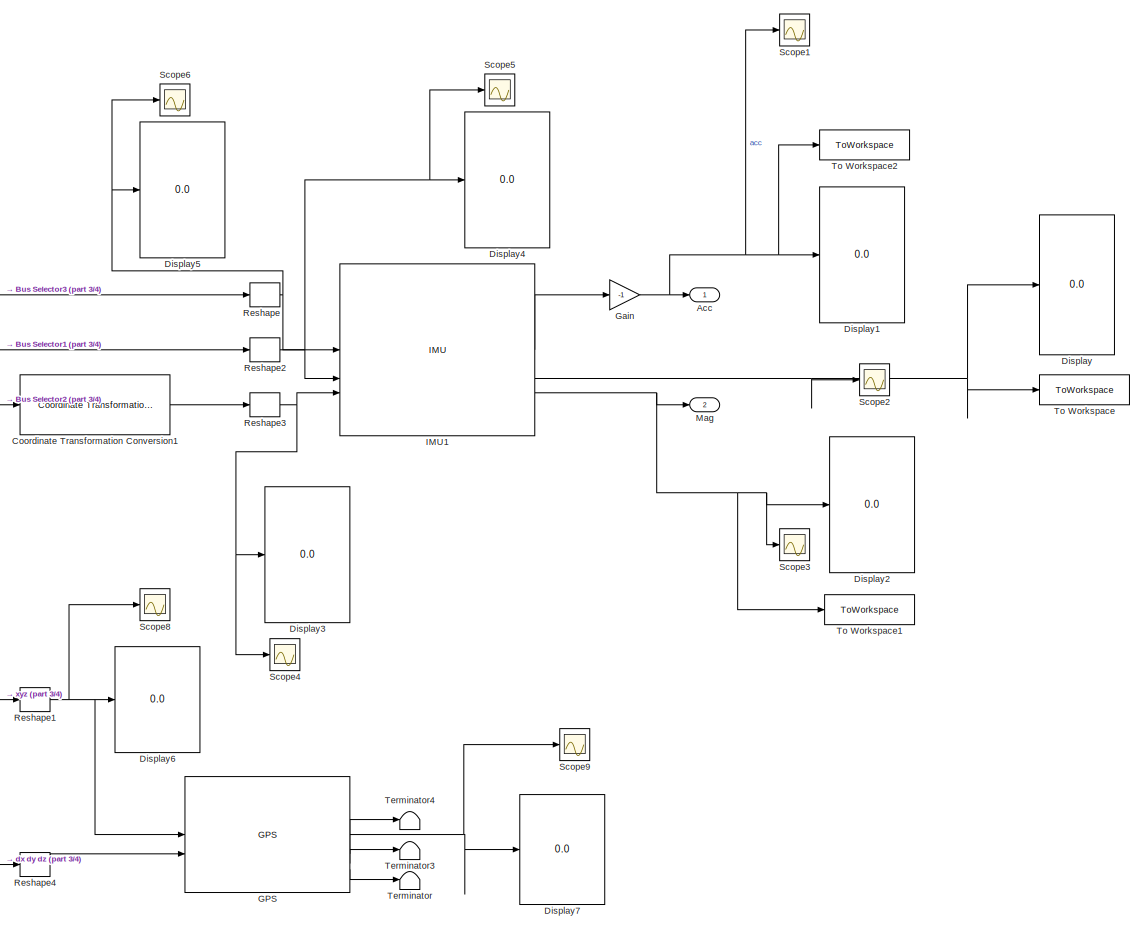
[diagram: root canvas - part 1/4, right side, full height]
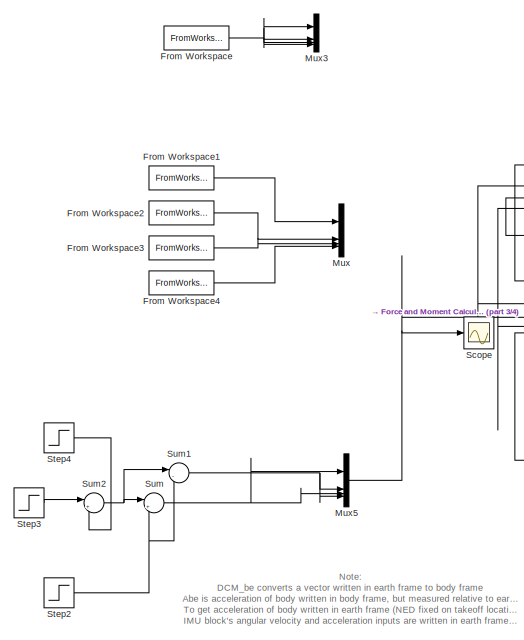
[diagram: root canvas - part 2/4, middle left region]
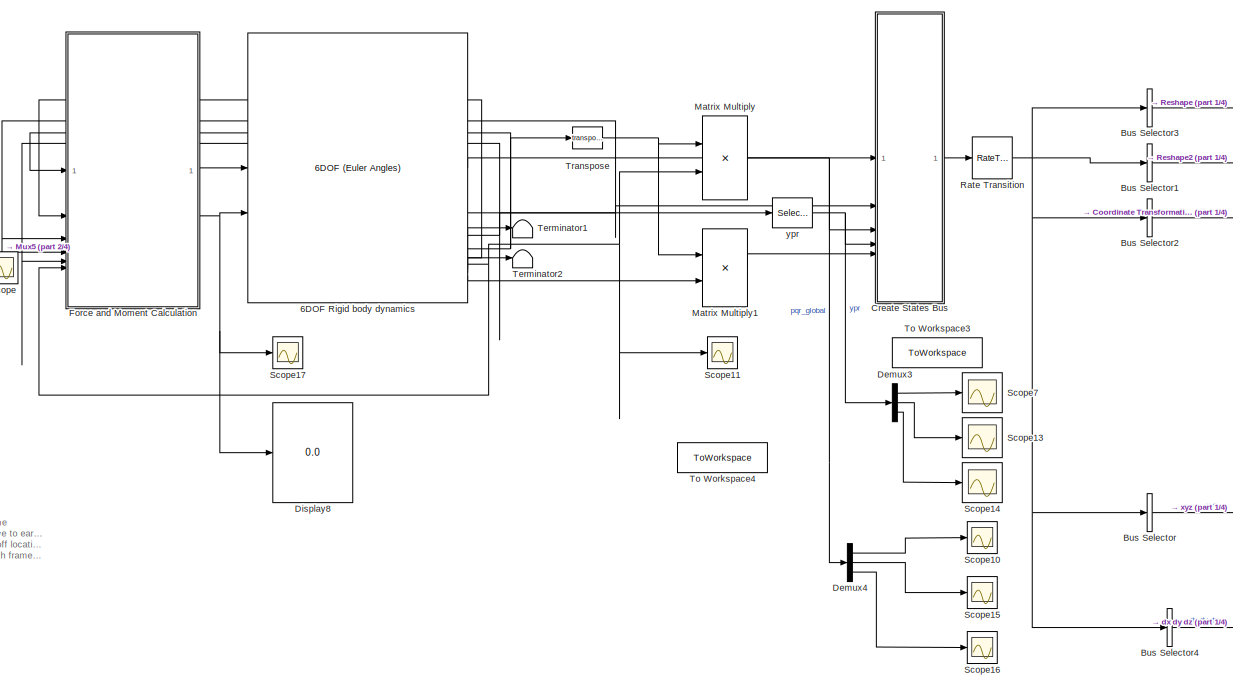
[diagram: root canvas - part 3/4, central region]
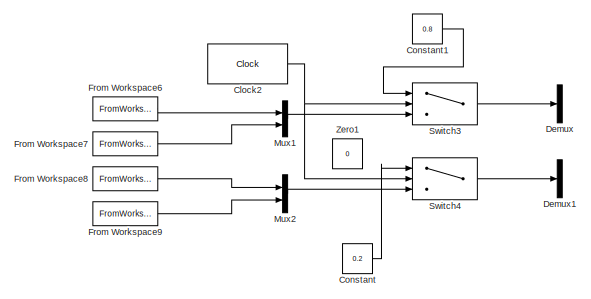
[diagram: root canvas - part 4/4, middle left region]
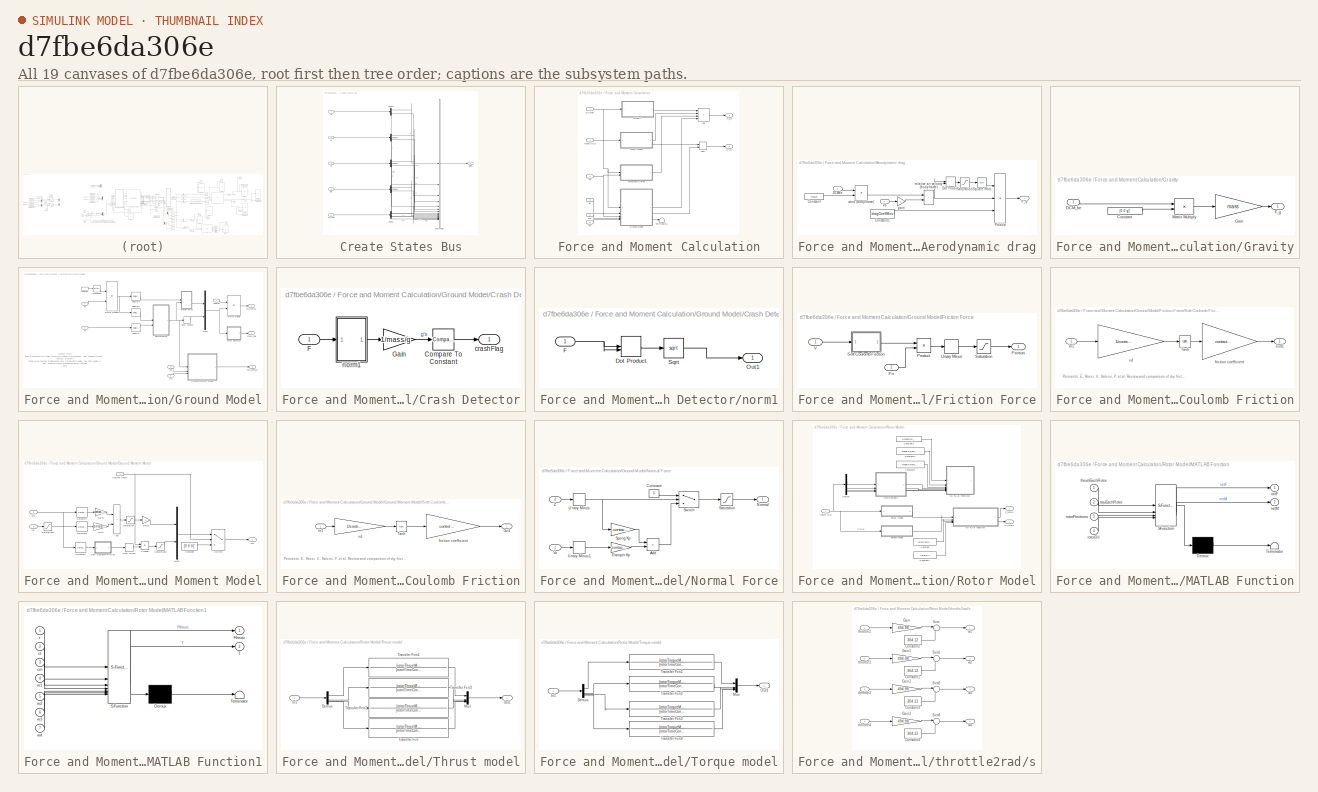
[diagram: thumbnail index - all 19 canvases of the model, root first then tree order]
MODEL slx_d7fbe6da306e
KIND model
CONFIG AbsTol = auto
CONFIG EnableMultiTasking = off
CONFIG FixedStep = auto
CONFIG MaxStep = auto
CONFIG MinStep = auto
CONFIG RelTol = 1e-3
CONFIG SampleTimeConstraint = Unconstrained
CONFIG SolverName = VariableStepAuto
CONFIG StartTime = 0.0
CONFIG StopTime = 40
BLOCK [Reference] 6DOF Rigid body dynamics   REF=shared6dof/6DOF (Euler Angles)
  SourceBlock = shared6dof/6DOF (Euler Angles)
  SourceType = 6DOF EoM (Body Axis)
BLOCK [Outport] Acc
BLOCK [BusSelector] Bus Selector
  OutputAsBus = on
  OutputSignals = X,Y,Z
BLOCK [BusSelector] Bus Selector1
  Commented = on
  OutputAsBus = on
  OutputSignals = p,q,r
BLOCK [BusSelector] Bus Selector2
  Commented = on
  OutputAsBus = on
  OutputSignals = yaw,pitch,roll
BLOCK [BusSelector] Bus Selector3
  Commented = on
  OutputAsBus = on
  OutputSignals = ddx,ddy,ddz
BLOCK [BusSelector] Bus Selector4
  Commented = on
  OutputAsBus = on
  OutputSignals = dx,dy,dz
BLOCK [Clock] Clock2
  Commented = on
  DisplayTime = on
BLOCK [Constant] Constant
  Commented = on
  Value = 0.2
BLOCK [Constant] Constant1
  Commented = on
  Value = 0.8
BLOCK [Reference] Coordinate Transformation Conversion1  REF=robotcorelib/Coordinate Transformation Conversion
  Commented = on
  SourceBlock = robotcorelib/Coordinate Transformation Conversion
  SourceType = robotics.slcore.internal.block.CoordinateTransformationConversion
BLOCK [SubSystem] Create States Bus
BLOCK [BusCreator] Create States Bus/Bus Creator
  DisplayOption = bar
  InheritFromInputs = on
  Inputs = X,Y,Z,yaw,pitch,roll,dx,dy,dz,p,q,r,ddx,ddy,ddz
BLOCK [Demux] Create States Bus/Demux
  Outputs = 3
BLOCK [Demux] Create States Bus/Demux1
  Outputs = 3
BLOCK [Demux] Create States Bus/Demux2
  Outputs = 3
BLOCK [Demux] Create States Bus/Demux3
  Outputs = 3
BLOCK [Demux] Create States Bus/Demux4
  Outputs = 3
BLOCK [Outport] Create States Bus/States
BLOCK [Inport] Create States Bus/Ve
BLOCK [Inport] Create States Bus/Xe
  Port = 2
BLOCK [Inport] Create States Bus/acc_lnav
  Port = 5
BLOCK [Inport] Create States Bus/pqr
  Port = 3
BLOCK [Inport] Create States Bus/ypr
  Port = 4
BLOCK [Demux] Demux
  Commented = on
  Outputs = 2
BLOCK [Demux] Demux1
  Commented = on
  Outputs = 2
BLOCK [Demux] Demux3
  Outputs = 3
BLOCK [Demux] Demux4
  Outputs = 3
BLOCK [Display] Display
  Commented = on
  Decimation = 1
BLOCK [Display] Display1
  Commented = on
  Decimation = 1
BLOCK [Display] Display2
  Commented = on
  Decimation = 1
BLOCK [Display] Display3
  Commented = on
  Decimation = 1
BLOCK [Display] Display4
  Commented = on
  Decimation = 1
BLOCK [Display] Display5
  Commented = on
  Decimation = 1
BLOCK [Display] Display6
  Decimation = 1
BLOCK [Display] Display7
  Commented = on
  Decimation = 1
BLOCK [Display] Display8
  Decimation = 1
BLOCK [SubSystem] Force and Moment Calculation
BLOCK [Sum] Force and Moment Calculation/Add
  IconShape = rectangular
  Inputs = ++++
BLOCK [Sum] Force and Moment Calculation/Add1
  IconShape = rectangular
BLOCK [SubSystem] Force and Moment Calculation/Aerodynamic drag
BLOCK [Constant] Force and Moment Calculation/Aerodynamic drag/Constant
  Value = windVel
BLOCK [Constant] Force and Moment Calculation/Aerodynamic drag/Constant1
  Value = dragCoeffMov
BLOCK [Inport] Force and Moment Calculation/Aerodynamic drag/DCMbe
BLOCK [DotProduct] Force and Moment Calculation/Aerodynamic drag/Dot Product
  OutDataTypeStr = Inherit: Inherit via internal rule
BLOCK [Outport] Force and Moment Calculation/Aerodynamic drag/F_d
BLOCK [Product] Force and Moment Calculation/Aerodynamic drag/Product
  Inputs = 3
BLOCK [Saturate] Force and Moment Calculation/Aerodynamic drag/Saturation
  LowerLimit = 0.0001
  UpperLimit = inf
BLOCK [Sqrt] Force and Moment Calculation/Aerodynamic drag/Square Root
BLOCK [Inport] Force and Moment Calculation/Aerodynamic drag/Vb
  Port = 2
BLOCK [Gain] Force and Moment Calculation/Aerodynamic drag/gain
  Gain = -1
BLOCK [Sum] Force and Moment Calculation/Aerodynamic drag/relative air velocity (body frame)
  IconShape = rectangular
BLOCK [Product] Force and Moment Calculation/Aerodynamic drag/wind (body frame)
  Multiplication = Matrix(*)
BLOCK [Inport] Force and Moment Calculation/DCMbe
BLOCK [Outport] Force and Moment Calculation/F_xyz
BLOCK [SubSystem] Force and Moment Calculation/Gravity
BLOCK [Constant] Force and Moment Calculation/Gravity/Constant
  Value = [0 0 g]'
BLOCK [Inport] Force and Moment Calculation/Gravity/DCM_be
BLOCK [Outport] Force and Moment Calculation/Gravity/F_g
BLOCK [Gain] Force and Moment Calculation/Gravity/Gain
  Gain = mass
BLOCK [Product] Force and Moment Calculation/Gravity/Matrix Multiply
  Multiplication = Matrix(*)
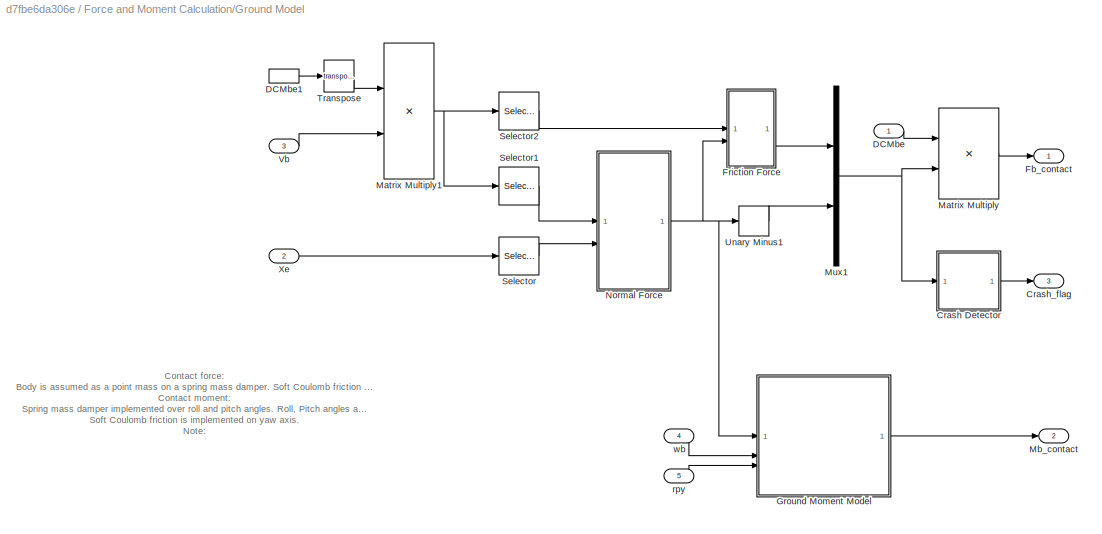
BLOCK [SubSystem] Force and Moment Calculation/Ground Model
BLOCK [SubSystem] Force and Moment Calculation/Ground Model/Crash Detector
BLOCK [Reference] Force and Moment Calculation/Ground Model/Crash Detector/Compare To Constant  REF=simulink/Logic and Bit
Operations/Compare
To Constant
  SourceBlock = simulink/Logic and Bit\nOperations/Compare\nTo Constant
  SourceType = Compare To Constant
BLOCK [Inport] Force and Moment Calculation/Ground Model/Crash Detector/F
BLOCK [Gain] Force and Moment Calculation/Ground Model/Crash Detector/Gain
  Gain = 1/mass/g
BLOCK [Outport] Force and Moment Calculation/Ground Model/Crash Detector/crashFlag
BLOCK [SubSystem] Force and Moment Calculation/Ground Model/Crash Detector/norm1
BLOCK [DotProduct] Force and Moment Calculation/Ground Model/Crash Detector/norm1/Dot Product
  OutDataTypeStr = Inherit: Inherit via internal rule
BLOCK [Inport] Force and Moment Calculation/Ground Model/Crash Detector/norm1/F
BLOCK [Outport] Force and Moment Calculation/Ground Model/Crash Detector/norm1/Out1
BLOCK [Sqrt] Force and Moment Calculation/Ground Model/Crash Detector/norm1/Sqrt
BLOCK [Outport] Force and Moment Calculation/Ground Model/Crash_flag
  Port = 3
BLOCK [Inport] Force and Moment Calculation/Ground Model/DCMbe
BLOCK [InportShadow] Force and Moment Calculation/Ground Model/DCMbe1
BLOCK [Outport] Force and Moment Calculation/Ground Model/Fb_contact
BLOCK [SubSystem] Force and Moment Calculation/Ground Model/Friction Force
BLOCK [Inport] Force and Moment Calculation/Ground Model/Friction Force/Fn
  Port = 2
BLOCK [Outport] Force and Moment Calculation/Ground Model/Friction Force/Friction
BLOCK [Product] Force and Moment Calculation/Ground Model/Friction Force/Product
BLOCK [Saturate] Force and Moment Calculation/Ground Model/Friction Force/Saturation
  LowerLimit = -contact.translation.maxFriction
  UpperLimit = contact.translation.maxFriction
BLOCK [SubSystem] Force and Moment Calculation/Ground Model/Friction Force/Soft Coulomb Friction
BLOCK [Inport] Force and Moment Calculation/Ground Model/Friction Force/Soft Coulomb Friction/In1
BLOCK [Outport] Force and Moment Calculation/Ground Model/Friction Force/Soft Coulomb Friction/Out1
BLOCK [Trigonometry] Force and Moment Calculation/Ground Model/Friction Force/Soft Coulomb Friction/Tanh
  Operator = tanh
BLOCK [Gain] Force and Moment Calculation/Ground Model/Friction Force/Soft Coulomb Friction/friction coefficient
  Gain = contact.translation.friction
BLOCK [Gain] Force and Moment Calculation/Ground Model/Friction Force/Soft Coulomb Friction/vd
  Gain = 1/contact.translation.vd
BLOCK [UnaryMinus] Force and Moment Calculation/Ground Model/Friction Force/Unary Minus
BLOCK [Inport] Force and Moment Calculation/Ground Model/Friction Force/V
BLOCK [SubSystem] Force and Moment Calculation/Ground Model/Ground Moment Model
BLOCK [Sum] Force and Moment Calculation/Ground Model/Ground Moment Model/Add
  IconShape = rectangular
BLOCK [Constant] Force and Moment Calculation/Ground Model/Ground Moment Model/Constant
  Value = [0 0 0]'
BLOCK [Gain] Force and Moment Calculation/Ground Model/Ground Moment Model/Gain
  Gain = contact.rotation.spring
BLOCK [Gain] Force and Moment Calculation/Ground Model/Ground Moment Model/Gain1
  Gain = contact.rotation.damper
BLOCK [Gain] Force and Moment Calculation/Ground Model/Ground Moment Model/Gain2
  Gain = -1
BLOCK [Outport] Force and Moment Calculation/Ground Model/Ground Moment Model/Mb
BLOCK [Mux] Force and Moment Calculation/Ground Model/Ground Moment Model/Mux2
  DisplayOption = bar
  Inputs = 2
BLOCK [Inport] Force and Moment Calculation/Ground Model/Ground Moment Model/Normal force
BLOCK [Product] Force and Moment Calculation/Ground Model/Ground Moment Model/Product
BLOCK [Saturate] Force and Moment Calculation/Ground Model/Ground Moment Model/Saturation
  LowerLimit = -control.rotation.maxMoment
  UpperLimit = control.rotation.maxMoment
BLOCK [Saturate] Force and Moment Calculation/Ground Model/Ground Moment Model/Saturation1
  LowerLimit = -20*pi/180
  UpperLimit = 20*pi/180
BLOCK [Saturate] Force and Moment Calculation/Ground Model/Ground Moment Model/Saturation2
  LowerLimit = -control.rotation.maxMoment
  UpperLimit = control.rotation.maxMoment
BLOCK [Selector] Force and Moment Calculation/Ground Model/Ground Moment Model/Selector3
  IndexOptions = Index vector (dialog)
  Indices = [3]
  InputPortWidth = 3
  OutputSizes = 1
BLOCK [Selector] Force and Moment Calculation/Ground Model/Ground Moment Model/Selector4
  IndexOptions = Index vector (dialog)
  Indices = [1, 2]
  InputPortWidth = 3
  OutputSizes = 1
BLOCK [Selector] Force and Moment Calculation/Ground Model/Ground Moment Model/Selector5
  IndexOptions = Index vector (dialog)
  Indices = [1, 2]
  InputPortWidth = 3
  OutputSizes = 1
BLOCK [SubSystem] Force and Moment Calculation/Ground Model/Ground Moment Model/Soft Coulomb Friction
BLOCK [Inport] Force and Moment Calculation/Ground Model/Ground Moment Model/Soft Coulomb Friction/In1
BLOCK [Outport] Force and Moment Calculation/Ground Model/Ground Moment Model/Soft Coulomb Friction/Out1
BLOCK [Trigonometry] Force and Moment Calculation/Ground Model/Ground Moment Model/Soft Coulomb Friction/Tanh
  Operator = tanh
BLOCK [Gain] Force and Moment Calculation/Ground Model/Ground Moment Model/Soft Coulomb Friction/friction coefficient
  Gain = control.rotation.friction
BLOCK [Gain] Force and Moment Calculation/Ground Model/Ground Moment Model/Soft Coulomb Friction/vd
  Gain = 1/control.rotation.vd
BLOCK [Switch] Force and Moment Calculation/Ground Model/Ground Moment Model/Switch
  Criteria = u2 > Threshold
  InputSameDT = off
  SaturateOnIntegerOverflow = off
BLOCK [UnaryMinus] Force and Moment Calculation/Ground Model/Ground Moment Model/Unary Minus
BLOCK [Inport] Force and Moment Calculation/Ground Model/Ground Moment Model/rpy
  Port = 3
BLOCK [Inport] Force and Moment Calculation/Ground Model/Ground Moment Model/wb
  Port = 2
BLOCK [Product] Force and Moment Calculation/Ground Model/Matrix Multiply
  Multiplication = Matrix(*)
BLOCK [Product] Force and Moment Calculation/Ground Model/Matrix Multiply1
  Multiplication = Matrix(*)
BLOCK [Outport] Force and Moment Calculation/Ground Model/Mb_contact
  Port = 2
BLOCK [Mux] Force and Moment Calculation/Ground Model/Mux1
  DisplayOption = bar
  Inputs = 2
BLOCK [SubSystem] Force and Moment Calculation/Ground Model/Normal Force
BLOCK [Sum] Force and Moment Calculation/Ground Model/Normal Force/Add
  IconShape = rectangular
BLOCK [Constant] Force and Moment Calculation/Ground Model/Normal Force/Constant
  Value = 0
BLOCK [Gain] Force and Moment Calculation/Ground Model/Normal Force/Damper Kp
  Gain = -contact.translation.damper
BLOCK [Outport] Force and Moment Calculation/Ground Model/Normal Force/Normal
BLOCK [Saturate] Force and Moment Calculation/Ground Model/Normal Force/Saturation
  LowerLimit = 0
  UpperLimit = contact.translation.maxNormal
BLOCK [Gain] Force and Moment Calculation/Ground Model/Normal Force/Spring Kp
  Gain = -contact.translation.spring
BLOCK [Switch] Force and Moment Calculation/Ground Model/Normal Force/Switch
  Criteria = u2 > Threshold
  InputSameDT = off
  SaturateOnIntegerOverflow = off
BLOCK [UnaryMinus] Force and Moment Calculation/Ground Model/Normal Force/Unary Minus
BLOCK [UnaryMinus] Force and Moment Calculation/Ground Model/Normal Force/Unary Minus1
BLOCK [Inport] Force and Moment Calculation/Ground Model/Normal Force/Vz
BLOCK [Inport] Force and Moment Calculation/Ground Model/Normal Force/Z
  Port = 2
BLOCK [Selector] Force and Moment Calculation/Ground Model/Selector
  IndexOptions = Index vector (dialog)
  Indices = [3]
  InputPortWidth = 3
  OutputSizes = 1
BLOCK [Selector] Force and Moment Calculation/Ground Model/Selector1
  IndexOptions = Index vector (dialog)
  Indices = [3]
  InputPortWidth = 3
  OutputSizes = 1
BLOCK [Selector] Force and Moment Calculation/Ground Model/Selector2
  IndexOptions = Index vector (dialog)
  Indices = [1,2]
  InputPortWidth = 3
  OutputSizes = 1
BLOCK [Math] Force and Moment Calculation/Ground Model/Transpose
  Operator = transpose
BLOCK [UnaryMinus] Force and Moment Calculation/Ground Model/Unary Minus1
BLOCK [Inport] Force and Moment Calculation/Ground Model/Vb
  Port = 3
BLOCK [Inport] Force and Moment Calculation/Ground Model/Xe
  Port = 2
BLOCK [Inport] Force and Moment Calculation/Ground Model/rpy
  Port = 5
BLOCK [Inport] Force and Moment Calculation/Ground Model/wb
  Port = 4
BLOCK [Inport] Force and Moment Calculation/Inputs [0-1]
  Port = 4
BLOCK [Outport] Force and Moment Calculation/M_xyz
  Port = 2
BLOCK [SubSystem] Force and Moment Calculation/Rotor Model
BLOCK [Constant] Force and Moment Calculation/Rotor Model/Constant
  Value = rotorPositions
BLOCK [Constant] Force and Moment Calculation/Rotor Model/Constant1
  Value = rotorDir
BLOCK [Constant] Force and Moment Calculation/Rotor Model/Constant2
  Commented = on
  Value = ModelParam_uavR
BLOCK [Constant] Force and Moment Calculation/Rotor Model/Constant3
  Commented = on
  Value = ModelParam_rotorCt
BLOCK [Constant] Force and Moment Calculation/Rotor Model/Constant4
  Commented = on
  Value = ModelParam_rotorCm
BLOCK [Demux] Force and Moment Calculation/Rotor Model/Demux
  Commented = on
BLOCK [Outport] Force and Moment Calculation/Rotor Model/F_rotors
BLOCK [Inport] Force and Moment Calculation/Rotor Model/Inputs [0-1]
BLOCK [SubSystem] Force and Moment Calculation/Rotor Model/MATLAB Function
  ErrorFcn = Stateflow.Translate.translate
  PermitHierarchicalResolution = ExplicitOnly
  SFBlockType = MATLAB Function
  TreatAsAtomicUnit = on
BLOCK [Demux] Force and Moment Calculation/Rotor Model/MATLAB Function/ Demux 
  Outputs = 1
BLOCK [S-Function] Force and Moment Calculation/Rotor Model/MATLAB Function/ SFunction 
  EnableBusSupport = on
  FunctionName = sf_sfun
  PortCounts = [4 3]
  SFcnIsStateOwnerBlock = off
  SFunctionDeploymentMode = off
  Tag = Stateflow S-Function 5
BLOCK [Terminator] Force and Moment Calculation/Rotor Model/MATLAB Function/ Terminator 
BLOCK [Outport] Force and Moment Calculation/Rotor Model/MATLAB Function/netF
  VectorParamsAs1DForOutWhenUnconnected = off
BLOCK [Outport] Force and Moment Calculation/Rotor Model/MATLAB Function/netM
  Port = 2
BLOCK [Inport] Force and Moment Calculation/Rotor Model/MATLAB Function/rotorDir
  Port = 4
BLOCK [Inport] Force and Moment Calculation/Rotor Model/MATLAB Function/rotorPositions
  Port = 3
BLOCK [Inport] Force and Moment Calculation/Rotor Model/MATLAB Function/tauEachRotor
  Port = 2
BLOCK [Inport] Force and Moment Calculation/Rotor Model/MATLAB Function/thrustEachRotor
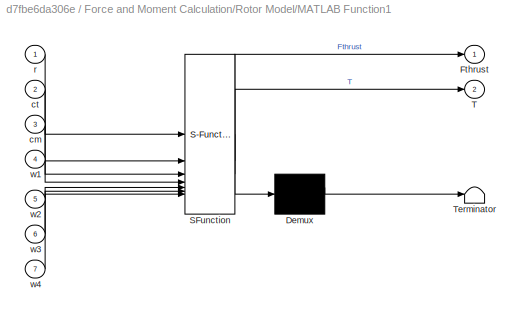
BLOCK [SubSystem] Force and Moment Calculation/Rotor Model/MATLAB Function1
  Commented = on
  ErrorFcn = Stateflow.Translate.translate
  LibrarySourceBlock = simulink/User-Defined\nFunctions/MATLAB Function
  PermitHierarchicalResolution = ExplicitOnly
  SFBlockType = MATLAB Function
  TreatAsAtomicUnit = on
BLOCK [Demux] Force and Moment Calculation/Rotor Model/MATLAB Function1/ Demux 
  Outputs = 1
BLOCK [S-Function] Force and Moment Calculation/Rotor Model/MATLAB Function1/ SFunction 
  EnableBusSupport = on
  FunctionName = sf_sfun
  PortCounts = [7 3]
  SFcnIsStateOwnerBlock = off
  SFunctionDeploymentMode = off
  Tag = Stateflow S-Function 2
BLOCK [Terminator] Force and Moment Calculation/Rotor Model/MATLAB Function1/ Terminator 
BLOCK [Outport] Force and Moment Calculation/Rotor Model/MATLAB Function1/Fthrust
BLOCK [Outport] Force and Moment Calculation/Rotor Model/MATLAB Function1/T
  Port = 2
BLOCK [Inport] Force and Moment Calculation/Rotor Model/MATLAB Function1/cm
  Port = 3
BLOCK [Inport] Force and Moment Calculation/Rotor Model/MATLAB Function1/ct
  Port = 2
BLOCK [Inport] Force and Moment Calculation/Rotor Model/MATLAB Function1/r
BLOCK [Inport] Force and Moment Calculation/Rotor Model/MATLAB Function1/w1
  Port = 4
BLOCK [Inport] Force and Moment Calculation/Rotor Model/MATLAB Function1/w2
  Port = 5
BLOCK [Inport] Force and Moment Calculation/Rotor Model/MATLAB Function1/w3
  Port = 6
BLOCK [Inport] Force and Moment Calculation/Rotor Model/MATLAB Function1/w4
  Port = 7
BLOCK [Outport] Force and Moment Calculation/Rotor Model/M_rotors
  Port = 2
BLOCK [SubSystem] Force and Moment Calculation/Rotor Model/Thrust model
BLOCK [Demux] Force and Moment Calculation/Rotor Model/Thrust model/Demux
BLOCK [Inport] Force and Moment Calculation/Rotor Model/Thrust model/In1
BLOCK [Mux] Force and Moment Calculation/Rotor Model/Thrust model/Mux
  DisplayOption = bar
BLOCK [Outport] Force and Moment Calculation/Rotor Model/Thrust model/Out1
BLOCK [TransferFcn] Force and Moment Calculation/Rotor Model/Thrust model/Transfer Fcn
  Denominator = [rotorTimeConst 1]
  Numerator = [rotorThrustMax]
BLOCK [TransferFcn] Force and Moment Calculation/Rotor Model/Thrust model/Transfer Fcn2
  Denominator = [rotorTimeConst 1]
  Numerator = [rotorThrustMax]
BLOCK [TransferFcn] Force and Moment Calculation/Rotor Model/Thrust model/Transfer Fcn3
  Denominator = [rotorTimeConst 1]
  Numerator = [rotorThrustMax]
BLOCK [TransferFcn] Force and Moment Calculation/Rotor Model/Thrust model/Transfer Fcn4
  Denominator = [rotorTimeConst 1]
  Numerator = [rotorThrustMax]
BLOCK [SubSystem] Force and Moment Calculation/Rotor Model/Torque model
BLOCK [Demux] Force and Moment Calculation/Rotor Model/Torque model/Demux
BLOCK [Inport] Force and Moment Calculation/Rotor Model/Torque model/In1
BLOCK [Mux] Force and Moment Calculation/Rotor Model/Torque model/Mux
  DisplayOption = bar
BLOCK [Outport] Force and Moment Calculation/Rotor Model/Torque model/Out1
BLOCK [TransferFcn] Force and Moment Calculation/Rotor Model/Torque model/Transfer Fcn1
  Denominator = [rotorTimeConst 1]
  Numerator = [rotorTorqueMax]
BLOCK [TransferFcn] Force and Moment Calculation/Rotor Model/Torque model/Transfer Fcn2
  Denominator = [rotorTimeConst 1]
  Numerator = [rotorTorqueMax]
BLOCK [TransferFcn] Force and Moment Calculation/Rotor Model/Torque model/Transfer Fcn3
  Denominator = [rotorTimeConst 1]
  Numerator = [rotorTorqueMax]
BLOCK [TransferFcn] Force and Moment Calculation/Rotor Model/Torque model/Transfer Fcn4
  Denominator = [rotorTimeConst 1]
  Numerator = [rotorTorqueMax]
BLOCK [SubSystem] Force and Moment Calculation/Rotor Model/throttle2rad//s
  Commented = on
BLOCK [Constant] Force and Moment Calculation/Rotor Model/throttle2rad//s/Constant1
  Value = 304.12
BLOCK [Constant] Force and Moment Calculation/Rotor Model/throttle2rad//s/Constant2
  Value = 304.12
BLOCK [Constant] Force and Moment Calculation/Rotor Model/throttle2rad//s/Constant3
  Value = 304.12
BLOCK [Constant] Force and Moment Calculation/Rotor Model/throttle2rad//s/Constant4
  Value = 304.12
BLOCK [Gain] Force and Moment Calculation/Rotor Model/throttle2rad//s/Gain
  Gain = 494.98
BLOCK [Gain] Force and Moment Calculation/Rotor Model/throttle2rad//s/Gain1
  Gain = 494.98
BLOCK [Gain] Force and Moment Calculation/Rotor Model/throttle2rad//s/Gain2
  Gain = 494.98
BLOCK [Gain] Force and Moment Calculation/Rotor Model/throttle2rad//s/Gain3
  Gain = 494.98
BLOCK [Sum] Force and Moment Calculation/Rotor Model/throttle2rad//s/Sum
  Inputs = |++
BLOCK [Sum] Force and Moment Calculation/Rotor Model/throttle2rad//s/Sum1
  Inputs = |++
BLOCK [Sum] Force and Moment Calculation/Rotor Model/throttle2rad//s/Sum2
  Inputs = |++
BLOCK [Sum] Force and Moment Calculation/Rotor Model/throttle2rad//s/Sum3
  Inputs = |++
BLOCK [Inport] Force and Moment Calculation/Rotor Model/throttle2rad//s/throttle1
BLOCK [Inport] Force and Moment Calculation/Rotor Model/throttle2rad//s/throttle2
  Port = 2
BLOCK [Inport] Force and Moment Calculation/Rotor Model/throttle2rad//s/throttle3
  Port = 3
BLOCK [Inport] Force and Moment Calculation/Rotor Model/throttle2rad//s/throttle4
  Port = 4
BLOCK [Outport] Force and Moment Calculation/Rotor Model/throttle2rad//s/w1
BLOCK [Outport] Force and Moment Calculation/Rotor Model/throttle2rad//s/w2
  Port = 2
BLOCK [Outport] Force and Moment Calculation/Rotor Model/throttle2rad//s/w3
  Port = 3
BLOCK [Outport] Force and Moment Calculation/Rotor Model/throttle2rad//s/w4
  Port = 4
BLOCK [Terminator] Force and Moment Calculation/Terminator1
BLOCK [Inport] Force and Moment Calculation/Vb
  Port = 2
BLOCK [Inport] Force and Moment Calculation/Xe
  Port = 3
BLOCK [Inport] Force and Moment Calculation/rpy
  Port = 5
BLOCK [Inport] Force and Moment Calculation/wb
  Port = 6
BLOCK [FromWorkspace] From Workspace
  Commented = on
  VariableName = motorStep
BLOCK [FromWorkspace] From Workspace1
  SampleTime = 0.25
  VariableName = motor1PWM
BLOCK [FromWorkspace] From Workspace2
  SampleTime = 0.25
  VariableName = motor2PWM
BLOCK [FromWorkspace] From Workspace3
  SampleTime = 0.25
  VariableName = motor3PWM
BLOCK [FromWorkspace] From Workspace4
  SampleTime = 0.25
  VariableName = motor4PWM
BLOCK [FromWorkspace] From Workspace6
  Commented = on
  SampleTime = 0.01
  VariableName = motor1PWM
BLOCK [FromWorkspace] From Workspace7
  Commented = on
  SampleTime = 0.01
  VariableName = motor2PWM
BLOCK [FromWorkspace] From Workspace8
  Commented = on
  SampleTime = 0.01
  VariableName = motor3PWM
BLOCK [FromWorkspace] From Workspace9
  Commented = on
  SampleTime = 0.01
  VariableName = motor4PWM
BLOCK [Reference] GPS  REF=sensorgpslib/GPS
  Commented = on
  LibrarySourceBlock = mspsensorlib/GPS
  SourceBlock = sensorgpslib/GPS
  SourceType = fusion.internal.simulink.gpsSensor
BLOCK [Gain] Gain
  Commented = on
  Gain = -1
BLOCK [Reference] IMU1  REF=mspsensorlib/IMU
  Commented = on
  SourceBlock = mspsensorlib/IMU
  SourceType = fusion.simulink.imuSensor
BLOCK [Outport] Mag
  Port = 2
BLOCK [Product] Matrix Multiply
  Multiplication = Matrix(*)
BLOCK [Product] Matrix Multiply1
  Multiplication = Matrix(*)
BLOCK [Mux] Mux
  DisplayOption = bar
BLOCK [Mux] Mux1
  Commented = on
  DisplayOption = bar
  Inputs = 2
BLOCK [Mux] Mux2
  Commented = on
  DisplayOption = bar
  Inputs = 2
BLOCK [Mux] Mux3
  Commented = on
  DisplayOption = bar
BLOCK [Mux] Mux5
  DisplayOption = bar
BLOCK [RateTransition] Rate Transition
  OutPortSampleTime = 0.01
BLOCK [Reshape] Reshape
  Commented = on
  OutputDimensionality = Row vector (2-D)
BLOCK [Reshape] Reshape1
  OutputDimensionality = Row vector (2-D)
BLOCK [Reshape] Reshape2
  Commented = on
  OutputDimensionality = Row vector (2-D)
BLOCK [Reshape] Reshape3
  Commented = on
  OutputDimensionality = Row vector (2-D)
BLOCK [Reshape] Reshape4
  Commented = on
  OutputDimensionality = Row vector (2-D)
BLOCK [Scope] Scope
  Floating = off
  NumInputPorts = 1
  ScopeSpecificationString = Simulink.scopes.TimeScopeBlockCfg('CurrentConfiguration', extmgr.ConfigurationSet(extmgr.Configuration('Core','General UI',true),extmgr.Configuration('Core','Source UI',true),extmgr.Configuration('Sources','WiredSimulink',true,'DataLoggingVariableName','ScopeData2'),extmgr.Configuration('Visuals','Time Domain',true,'SerializedDisplays',{struct('MinYLimReal','0.8875','MaxYLimReal','0.9125','YLabelR...<+1402ch>
BLOCK [Scope] Scope1
  Commented = on
  Floating = off
  NumInputPorts = 1
  ScopeSpecificationString = Simulink.scopes.TimeScopeBlockCfg('CurrentConfiguration', extmgr.ConfigurationSet(extmgr.Configuration('Core','General UI',true),extmgr.Configuration('Core','Source UI',true),extmgr.Configuration('Sources','WiredSimulink',true,'DataLoggingVariableName','ScopeData1'),extmgr.Configuration('Visuals','Time Domain',true,'SerializedDisplays',{struct('MinYLimReal','-17.44814','MaxYLimReal','13.93151','YL...<+1417ch>
BLOCK [Scope] Scope10
  Floating = off
  NumInputPorts = 1
  ScopeSpecificationString = Simulink.scopes.TimeScopeBlockCfg('CurrentConfiguration', extmgr.ConfigurationSet(extmgr.Configuration('Core','General UI',true),extmgr.Configuration('Core','Source UI',true),extmgr.Configuration('Sources','WiredSimulink',true,'DataLoggingVariableName','ScopeData2'),extmgr.Configuration('Visuals','Time Domain',true,'SerializedDisplays',{struct('MinYLimReal','-8.4639','MaxYLimReal','0.94043','YLabe...<+1413ch>
BLOCK [Scope] Scope11
  Floating = off
  NumInputPorts = 1
  ScopeSpecificationString = Simulink.scopes.TimeScopeBlockCfg('CurrentConfiguration', extmgr.ConfigurationSet(extmgr.Configuration('Core','General UI',true),extmgr.Configuration('Core','Source UI',true),extmgr.Configuration('Sources','WiredSimulink',true,'DataLoggingVariableName','ScopeData1'),extmgr.Configuration('Visuals','Time Domain',true,'SerializedDisplays',{struct('MinYLimReal','-0.14388','MaxYLimReal','1.29491','YLab...<+1482ch>
BLOCK [Scope] Scope13
  Floating = off
  NumInputPorts = 1
  ScopeSpecificationString = Simulink.scopes.TimeScopeBlockCfg('CurrentConfiguration', extmgr.ConfigurationSet(extmgr.Configuration('Core','General UI',true),extmgr.Configuration('Core','Source UI',true),extmgr.Configuration('Sources','WiredSimulink',true,'DataLoggingVariableName','ScopeData1'),extmgr.Configuration('Visuals','Time Domain',true,'SerializedDisplays',{struct('MinYLimReal','-1.96313','MaxYLimReal','1.96295','YLab...<+1450ch>
BLOCK [Scope] Scope14
  Floating = off
  NumInputPorts = 1
  ScopeSpecificationString = Simulink.scopes.TimeScopeBlockCfg('CurrentConfiguration', extmgr.ConfigurationSet(extmgr.Configuration('Core','General UI',true),extmgr.Configuration('Core','Source UI',true),extmgr.Configuration('Sources','WiredSimulink',true,'DataLoggingVariableName','ScopeData2'),extmgr.Configuration('Visuals','Time Domain',true,'SerializedDisplays',{struct('MinYLimReal','-3.14159','MaxYLimReal','3.14159','YLab...<+1449ch>
BLOCK [Scope] Scope15
  Floating = off
  NumInputPorts = 1
  ScopeSpecificationString = Simulink.scopes.TimeScopeBlockCfg('CurrentConfiguration', extmgr.ConfigurationSet(extmgr.Configuration('Core','General UI',true),extmgr.Configuration('Core','Source UI',true),extmgr.Configuration('Sources','WiredSimulink',true,'DataLoggingVariableName','ScopeData3'),extmgr.Configuration('Visuals','Time Domain',true,'SerializedDisplays',{struct('MinYLimReal','-0.14388','MaxYLimReal','1.29491','YLab...<+1415ch>
BLOCK [Scope] Scope16
  Floating = off
  NumInputPorts = 1
  ScopeSpecificationString = Simulink.scopes.TimeScopeBlockCfg('CurrentConfiguration', extmgr.ConfigurationSet(extmgr.Configuration('Core','General UI',true),extmgr.Configuration('Core','Source UI',true),extmgr.Configuration('Sources','WiredSimulink',true,'DataLoggingVariableName','ScopeData4'),extmgr.Configuration('Visuals','Time Domain',true,'SerializedDisplays',{struct('MinYLimReal','-0.00258','MaxYLimReal','0.00107','YLab...<+1415ch>
BLOCK [Scope] Scope17
  Floating = off
  NumInputPorts = 1
  ScopeSpecificationString = Simulink.scopes.TimeScopeBlockCfg('CurrentConfiguration', extmgr.ConfigurationSet(extmgr.Configuration('Core','General UI',true),extmgr.Configuration('Core','Source UI',true),extmgr.Configuration('Sources','WiredSimulink',true,'DataLoggingVariableName','ScopeData5'),extmgr.Configuration('Visuals','Time Domain',true,'SerializedDisplays',{struct('MinYLimReal','-0.18586','MaxYLimReal','0.13176','YLab...<+1536ch>
BLOCK [Scope] Scope2
  Commented = on
  Floating = off
  NumInputPorts = 1
  ScopeSpecificationString = Simulink.scopes.TimeScopeBlockCfg('CurrentConfiguration', extmgr.ConfigurationSet(extmgr.Configuration('Core','General UI',true),extmgr.Configuration('Core','Source UI',true),extmgr.Configuration('Sources','WiredSimulink',true,'DataLoggingVariableName','ScopeData2'),extmgr.Configuration('Visuals','Time Domain',true,'SerializedDisplays',{struct('MinYLimReal','-0.77545','MaxYLimReal','0.8108','YLabe...<+1418ch>
BLOCK [Scope] Scope3
  Commented = on
  Floating = off
  NumInputPorts = 1
  ScopeSpecificationString = Simulink.scopes.TimeScopeBlockCfg('CurrentConfiguration', extmgr.ConfigurationSet(extmgr.Configuration('Core','General UI',true),extmgr.Configuration('Core','Source UI',true),extmgr.Configuration('Sources','WiredSimulink',true,'DataLoggingVariableName','ScopeData3'),extmgr.Configuration('Visuals','Time Domain',true,'SerializedDisplays',{struct('MinYLimReal','-58.59169','MaxYLimReal','58.71602','YL...<+1428ch>
BLOCK [Scope] Scope4
  Commented = on
  Floating = off
  NumInputPorts = 1
  ScopeSpecificationString = Simulink.scopes.TimeScopeBlockCfg('CurrentConfiguration', extmgr.ConfigurationSet(extmgr.Configuration('Core','General UI',true),extmgr.Configuration('Core','Source UI',true),extmgr.Configuration('Sources','WiredSimulink',true,'DataLoggingVariableName','ScopeData4'),extmgr.Configuration('Visuals','Time Domain',true,'SerializedDisplays',{struct('MinYLimReal','-1.1076','MaxYLimReal','1.23418','YLabe...<+1439ch>
BLOCK [Scope] Scope5
  Commented = on
  Floating = off
  NumInputPorts = 1
  ScopeSpecificationString = Simulink.scopes.TimeScopeBlockCfg('CurrentConfiguration', extmgr.ConfigurationSet(extmgr.Configuration('Core','General UI',true),extmgr.Configuration('Core','Source UI',true),extmgr.Configuration('Sources','WiredSimulink',true,'DataLoggingVariableName','ScopeData5'),extmgr.Configuration('Visuals','Time Domain',true,'SerializedDisplays',{struct('MinYLimReal','-1539.35488','MaxYLimReal','257.87174',...<+1447ch>
BLOCK [Scope] Scope6
  Commented = on
  Floating = off
  NumInputPorts = 1
  ScopeSpecificationString = Simulink.scopes.TimeScopeBlockCfg('CurrentConfiguration', extmgr.ConfigurationSet(extmgr.Configuration('Core','General UI',true),extmgr.Configuration('Core','Source UI',true),extmgr.Configuration('Sources','WiredSimulink',true,'DataLoggingVariableName','ScopeData6'),extmgr.Configuration('Visuals','Time Domain',true,'SerializedDisplays',{struct('MinYLimReal','-5.61702','MaxYLimReal','5.63773','YLab...<+1425ch>
BLOCK [Scope] Scope7
  Floating = off
  NumInputPorts = 1
  ScopeSpecificationString = Simulink.scopes.TimeScopeBlockCfg('CurrentConfiguration', extmgr.ConfigurationSet(extmgr.Configuration('Core','General UI',true),extmgr.Configuration('Core','Source UI',true),extmgr.Configuration('Sources','WiredSimulink',true,'DataLoggingVariableName','ScopeData1'),extmgr.Configuration('Visuals','Time Domain',true,'SerializedDisplays',{struct('MinYLimReal','-3.92699','MaxYLimReal','3.92699','YLab...<+1450ch>
BLOCK [Scope] Scope8
  Floating = off
  NumInputPorts = 1
  ScopeSpecificationString = Simulink.scopes.TimeScopeBlockCfg('CurrentConfiguration', extmgr.ConfigurationSet(extmgr.Configuration('Core','General UI',true),extmgr.Configuration('Core','Source UI',true),extmgr.Configuration('Sources','WiredSimulink',true,'DataLoggingVariableName','ScopeData1'),extmgr.Configuration('Visuals','Time Domain',true,'SerializedDisplays',{struct('MinYLimReal','-148.27873','MaxYLimReal','1174.40843',...<+1446ch>
BLOCK [Scope] Scope9
  Commented = on
  Floating = off
  NumInputPorts = 1
  ScopeSpecificationString = Simulink.scopes.TimeScopeBlockCfg('CurrentConfiguration', extmgr.ConfigurationSet(extmgr.Configuration('Core','General UI',true),extmgr.Configuration('Core','Source UI',true),extmgr.Configuration('Sources','WiredSimulink',true,'DataLoggingVariableName','ScopeData2'),extmgr.Configuration('Visuals','Time Domain',true,'SerializedDisplays',{struct('MinYLimReal','-51.38933','MaxYLimReal','547.9599','YL...<+1392ch>
BLOCK [Step] Step2
  After = 0.9
  SampleTime = 0.25
  Time = 0
BLOCK [Step] Step3
  After = 0.01
  SampleTime = 0.25
  Time = 10
BLOCK [Step] Step4
  After = 0.01
  SampleTime = 0.25
  Time = 11
BLOCK [Sum] Sum
  Inputs = |++
BLOCK [Sum] Sum1
  Inputs = |-+
BLOCK [Sum] Sum2
  Inputs = |+-
BLOCK [Switch] Switch3
  Commented = on
  Criteria = u2 > Threshold
  InputSameDT = off
  SaturateOnIntegerOverflow = off
  Threshold = 102
BLOCK [Switch] Switch4
  Commented = on
  Criteria = u2 > Threshold
  InputSameDT = off
  SaturateOnIntegerOverflow = off
  Threshold = 102
BLOCK [Terminator] Terminator
  Commented = on
BLOCK [Terminator] Terminator1
BLOCK [Terminator] Terminator2
BLOCK [Terminator] Terminator3
  Commented = on
BLOCK [Terminator] Terminator4
  Commented = on
BLOCK [ToWorkspace] To Workspace
  Commented = on
  FixptAsFi = on
  MaxDataPoints = inf
  SampleTime = 0.25
  SaveFormat = Timeseries
  VariableName = gyro
BLOCK [ToWorkspace] To Workspace1
  Commented = on
  FixptAsFi = on
  MaxDataPoints = inf
  SampleTime = 0.25
  SaveFormat = Timeseries
  VariableName = mag
BLOCK [ToWorkspace] To Workspace2
  Commented = on
  FixptAsFi = on
  MaxDataPoints = inf
  SampleTime = 0.25
  SaveFormat = Timeseries
  VariableName = acc
BLOCK [ToWorkspace] To Workspace3
  FixptAsFi = on
  MaxDataPoints = inf
  SampleTime = 0.25
  SaveFormat = Timeseries
  VariableName = ypr
BLOCK [ToWorkspace] To Workspace4
  FixptAsFi = on
  MaxDataPoints = inf
  SampleTime = 0.25
  SaveFormat = Timeseries
  VariableName = pqr
BLOCK [Math] Transpose
  Operator = transpose
BLOCK [Constant] Zero1
  Commented = on
  OutDataTypeStr = Inherit: Inherit via back propagation
  Value = 0
BLOCK [Selector] ypr
  IndexOptions = Index vector (dialog)
  Indices = [3 2 1]
  InputPortWidth = 3
  OutputSizes = 1
ANNOTATION (root): Note: DCM_be converts a vector written in earth frame to body frame Abe is acceleration of body written in body frame, but measured relative to earth. To get acceleration of body written in earth frame (NED fixed on takeoff location), we need to convert the frame. IMU block's angular velocity and acceleration inputs are written in earth frame (NED)
ANNOTATION Force and Moment Calculation/Ground Model: Contact force: Body is assumed as a point mass on a spring mass damper. Soft Coulomb friction model is used to simulate friction. Contact moment: Spring mass damper implemented over roll and pitch angles. Roll, Pitch angles are assumed to be small. Soft Coulomb friction is implemented on yaw axis. Note: Contact forces are sensed by accelerometer model. A hard contact model would generate high swit...<+103ch>
ANNOTATION Force and Moment Calculation/Ground Model/Friction Force/Soft Coulomb Friction: Pennestrì, E., Rossi, V., Salvini, P. et al. Review and comparison of dry friction force models. Nonlinear Dyn 83, 1785–1801 (2016). https://doi.org/10.1007/s11071-015-2485-3
ANNOTATION Force and Moment Calculation/Ground Model/Ground Moment Model/Soft Coulomb Friction: Pennestrì, E., Rossi, V., Salvini, P. et al. Review and comparison of dry friction force models. Nonlinear Dyn 83, 1785–1801 (2016). https://doi.org/10.1007/s11071-015-2485-3
LINE 6DOF Rigid body dynamics :1 -> Create States Bus:1
NET 6DOF Rigid body dynamics :2 -> Create States Bus:2, Force and Moment Calculation:3
NET 6DOF Rigid body dynamics :3 -> Force and Moment Calculation:5, ypr:1
NET 6DOF Rigid body dynamics :4 -> Force and Moment Calculation:1, Transpose:1
LINE 6DOF Rigid body dynamics :5 -> Force and Moment Calculation:2
NET 6DOF Rigid body dynamics :6 -> Force and Moment Calculation:6, Matrix Multiply:2, Scope11:1
LINE 6DOF Rigid body dynamics :7 -> Terminator1:1
LINE 6DOF Rigid body dynamics :8 -> Terminator2:1
LINE 6DOF Rigid body dynamics :9 -> Matrix Multiply1:2
LINE Bus Selector1:1 -> Reshape2:1
LINE Bus Selector2:1 -> Coordinate Transformation Conversion1:1
LINE Bus Selector3:1 -> Reshape:1
LINE Bus Selector4:1 -> Reshape4:1
LINE Bus Selector:1 -> Reshape1:1
NET Clock2:1 -> Switch3:2, Switch4:2
LINE Constant1:1 -> Switch3:1
LINE Constant:1 -> Switch4:1
LINE Coordinate Transformation Conversion1:1 -> Reshape3:1
LINE Create States Bus/Bus Creator:1 -> Create States Bus/States:1
LINE Create States Bus/Demux1:1 -> Create States Bus/Bus Creator:1
LINE Create States Bus/Demux1:2 -> Create States Bus/Bus Creator:2
LINE Create States Bus/Demux1:3 -> Create States Bus/Bus Creator:3
LINE Create States Bus/Demux2:1 -> Create States Bus/Bus Creator:4
LINE Create States Bus/Demux2:2 -> Create States Bus/Bus Creator:5
LINE Create States Bus/Demux2:3 -> Create States Bus/Bus Creator:6
LINE Create States Bus/Demux3:1 -> Create States Bus/Bus Creator:7
LINE Create States Bus/Demux3:2 -> Create States Bus/Bus Creator:8
LINE Create States Bus/Demux3:3 -> Create States Bus/Bus Creator:9
LINE Create States Bus/Demux4:1 -> Create States Bus/Bus Creator:10
LINE Create States Bus/Demux4:2 -> Create States Bus/Bus Creator:11
LINE Create States Bus/Demux4:3 -> Create States Bus/Bus Creator:12
LINE Create States Bus/Demux:1 -> Create States Bus/Bus Creator:13
LINE Create States Bus/Demux:2 -> Create States Bus/Bus Creator:14
LINE Create States Bus/Demux:3 -> Create States Bus/Bus Creator:15
LINE Create States Bus/Ve:1 -> Create States Bus/Demux3:1
LINE Create States Bus/Xe:1 -> Create States Bus/Demux1:1
LINE Create States Bus/acc_lnav:1 -> Create States Bus/Demux:1
LINE Create States Bus/pqr:1 -> Create States Bus/Demux4:1
LINE Create States Bus/ypr:1 -> Create States Bus/Demux2:1
LINE Create States Bus:1 -> Rate Transition:1
LINE Demux3:1 -> Scope7:1
LINE Demux3:2 -> Scope13:1
LINE Demux3:3 -> Scope14:1
LINE Demux4:1 -> Scope10:1
LINE Demux4:2 -> Scope15:1
LINE Demux4:3 -> Scope16:1
LINE Force and Moment Calculation/Add1:1 -> Force and Moment Calculation/M_xyz:1
LINE Force and Moment Calculation/Add:1 -> Force and Moment Calculation/F_xyz:1
LINE Force and Moment Calculation/Aerodynamic drag/Constant1:1 -> Force and Moment Calculation/Aerodynamic drag/Product:3
LINE Force and Moment Calculation/Aerodynamic drag/Constant:1 -> Force and Moment Calculation/Aerodynamic drag/wind (body frame):2
LINE Force and Moment Calculation/Aerodynamic drag/DCMbe:1 -> Force and Moment Calculation/Aerodynamic drag/wind (body frame):1
LINE Force and Moment Calculation/Aerodynamic drag/Dot Product:1 -> Force and Moment Calculation/Aerodynamic drag/Saturation:1
LINE Force and Moment Calculation/Aerodynamic drag/Product:1 -> Force and Moment Calculation/Aerodynamic drag/F_d:1
LINE Force and Moment Calculation/Aerodynamic drag/Saturation:1 -> Force and Moment Calculation/Aerodynamic drag/Square Root:1
LINE Force and Moment Calculation/Aerodynamic drag/Square Root:1 -> Force and Moment Calculation/Aerodynamic drag/Product:1
LINE Force and Moment Calculation/Aerodynamic drag/Vb:1 -> Force and Moment Calculation/Aerodynamic drag/gain:1
LINE Force and Moment Calculation/Aerodynamic drag/gain:1 -> Force and Moment Calculation/Aerodynamic drag/relative air velocity (body frame):2
NET Force and Moment Calculation/Aerodynamic drag/relative air velocity (body frame):1 -> Force and Moment Calculation/Aerodynamic drag/Dot Product:1, Force and Moment Calculation/Aerodynamic drag/Dot Product:2, Force and Moment Calculation/Aerodynamic drag/Product:2
LINE Force and Moment Calculation/Aerodynamic drag/wind (body frame):1 -> Force and Moment Calculation/Aerodynamic drag/relative air velocity (body frame):1
LINE Force and Moment Calculation/Aerodynamic drag:1 -> Force and Moment Calculation/Add:3
NET Force and Moment Calculation/DCMbe:1 -> Force and Moment Calculation/Aerodynamic drag:1, Force and Moment Calculation/Gravity:1, Force and Moment Calculation/Ground Model:1
LINE Force and Moment Calculation/Gravity/Constant:1 -> Force and Moment Calculation/Gravity/Matrix Multiply:2
LINE Force and Moment Calculation/Gravity/DCM_be:1 -> Force and Moment Calculation/Gravity/Matrix Multiply:1
LINE Force and Moment Calculation/Gravity/Gain:1 -> Force and Moment Calculation/Gravity/F_g:1
LINE Force and Moment Calculation/Gravity/Matrix Multiply:1 -> Force and Moment Calculation/Gravity/Gain:1
LINE Force and Moment Calculation/Gravity:1 -> Force and Moment Calculation/Add:1
LINE Force and Moment Calculation/Ground Model/Crash Detector/Compare To Constant:1 -> Force and Moment Calculation/Ground Model/Crash Detector/crashFlag:1
LINE Force and Moment Calculation/Ground Model/Crash Detector/F:1 -> Force and Moment Calculation/Ground Model/Crash Detector/norm1:1
LINE Force and Moment Calculation/Ground Model/Crash Detector/Gain:1 -> Force and Moment Calculation/Ground Model/Crash Detector/Compare To Constant:1
LINE Force and Moment Calculation/Ground Model/Crash Detector/norm1/Dot Product:1 -> Force and Moment Calculation/Ground Model/Crash Detector/norm1/Sqrt:1
NET Force and Moment Calculation/Ground Model/Crash Detector/norm1/F:1 -> Force and Moment Calculation/Ground Model/Crash Detector/norm1/Dot Product:1, Force and Moment Calculation/Ground Model/Crash Detector/norm1/Dot Product:2
LINE Force and Moment Calculation/Ground Model/Crash Detector/norm1/Sqrt:1 -> Force and Moment Calculation/Ground Model/Crash Detector/norm1/Out1:1
LINE Force and Moment Calculation/Ground Model/Crash Detector/norm1:1 -> Force and Moment Calculation/Ground Model/Crash Detector/Gain:1
LINE Force and Moment Calculation/Ground Model/Crash Detector:1 -> Force and Moment Calculation/Ground Model/Crash_flag:1
LINE Force and Moment Calculation/Ground Model/DCMbe1:1 -> Force and Moment Calculation/Ground Model/Transpose:1
LINE Force and Moment Calculation/Ground Model/DCMbe:1 -> Force and Moment Calculation/Ground Model/Matrix Multiply:1
LINE Force and Moment Calculation/Ground Model/Friction Force/Fn:1 -> Force and Moment Calculation/Ground Model/Friction Force/Product:2
LINE Force and Moment Calculation/Ground Model/Friction Force/Product:1 -> Force and Moment Calculation/Ground Model/Friction Force/Unary Minus:1
LINE Force and Moment Calculation/Ground Model/Friction Force/Saturation:1 -> Force and Moment Calculation/Ground Model/Friction Force/Friction:1
LINE Force and Moment Calculation/Ground Model/Friction Force/Soft Coulomb Friction/In1:1 -> Force and Moment Calculation/Ground Model/Friction Force/Soft Coulomb Friction/vd:1
LINE Force and Moment Calculation/Ground Model/Friction Force/Soft Coulomb Friction/Tanh:1 -> Force and Moment Calculation/Ground Model/Friction Force/Soft Coulomb Friction/friction coefficient:1
LINE Force and Moment Calculation/Ground Model/Friction Force/Soft Coulomb Friction/friction coefficient:1 -> Force and Moment Calculation/Ground Model/Friction Force/Soft Coulomb Friction/Out1:1
LINE Force and Moment Calculation/Ground Model/Friction Force/Soft Coulomb Friction/vd:1 -> Force and Moment Calculation/Ground Model/Friction Force/Soft Coulomb Friction/Tanh:1
LINE Force and Moment Calculation/Ground Model/Friction Force/Soft Coulomb Friction:1 -> Force and Moment Calculation/Ground Model/Friction Force/Product:1
LINE Force and Moment Calculation/Ground Model/Friction Force/Unary Minus:1 -> Force and Moment Calculation/Ground Model/Friction Force/Saturation:1
LINE Force and Moment Calculation/Ground Model/Friction Force/V:1 -> Force and Moment Calculation/Ground Model/Friction Force/Soft Coulomb Friction:1
LINE Force and Moment Calculation/Ground Model/Friction Force:1 -> Force and Moment Calculation/Ground Model/Mux1:1
LINE Force and Moment Calculation/Ground Model/Ground Moment Model/Add:1 -> Force and Moment Calculation/Ground Model/Ground Moment Model/Saturation:1
LINE Force and Moment Calculation/Ground Model/Ground Moment Model/Constant:1 -> Force and Moment Calculation/Ground Model/Ground Moment Model/Switch:3
LINE Force and Moment Calculation/Ground Model/Ground Moment Model/Gain1:1 -> Force and Moment Calculation/Ground Model/Ground Moment Model/Add:1
LINE Force and Moment Calculation/Ground Model/Ground Moment Model/Gain2:1 -> Force and Moment Calculation/Ground Model/Ground Moment Model/Mux2:1
LINE Force and Moment Calculation/Ground Model/Ground Moment Model/Gain:1 -> Force and Moment Calculation/Ground Model/Ground Moment Model/Add:2
LINE Force and Moment Calculation/Ground Model/Ground Moment Model/Mux2:1 -> Force and Moment Calculation/Ground Model/Ground Moment Model/Switch:1
NET Force and Moment Calculation/Ground Model/Ground Moment Model/Normal force:1 -> Force and Moment Calculation/Ground Model/Ground Moment Model/Product:1, Force and Moment Calculation/Ground Model/Ground Moment Model/Switch:2
LINE Force and Moment Calculation/Ground Model/Ground Moment Model/Product:1 -> Force and Moment Calculation/Ground Model/Ground Moment Model/Saturation2:1
LINE Force and Moment Calculation/Ground Model/Ground Moment Model/Saturation1:1 -> Force and Moment Calculation/Ground Model/Ground Moment Model/Selector5:1
LINE Force and Moment Calculation/Ground Model/Ground Moment Model/Saturation2:1 -> Force and Moment Calculation/Ground Model/Ground Moment Model/Mux2:2
LINE Force and Moment Calculation/Ground Model/Ground Moment Model/Saturation:1 -> Force and Moment Calculation/Ground Model/Ground Moment Model/Gain2:1
LINE Force and Moment Calculation/Ground Model/Ground Moment Model/Selector3:1 -> Force and Moment Calculation/Ground Model/Ground Moment Model/Soft Coulomb Friction:1
LINE Force and Moment Calculation/Ground Model/Ground Moment Model/Selector4:1 -> Force and Moment Calculation/Ground Model/Ground Moment Model/Gain1:1
LINE Force and Moment Calculation/Ground Model/Ground Moment Model/Selector5:1 -> Force and Moment Calculation/Ground Model/Ground Moment Model/Gain:1
LINE Force and Moment Calculation/Ground Model/Ground Moment Model/Soft Coulomb Friction/In1:1 -> Force and Moment Calculation/Ground Model/Ground Moment Model/Soft Coulomb Friction/vd:1
LINE Force and Moment Calculation/Ground Model/Ground Moment Model/Soft Coulomb Friction/Tanh:1 -> Force and Moment Calculation/Ground Model/Ground Moment Model/Soft Coulomb Friction/friction coefficient:1
LINE Force and Moment Calculation/Ground Model/Ground Moment Model/Soft Coulomb Friction/friction coefficient:1 -> Force and Moment Calculation/Ground Model/Ground Moment Model/Soft Coulomb Friction/Out1:1
LINE Force and Moment Calculation/Ground Model/Ground Moment Model/Soft Coulomb Friction/vd:1 -> Force and Moment Calculation/Ground Model/Ground Moment Model/Soft Coulomb Friction/Tanh:1
LINE Force and Moment Calculation/Ground Model/Ground Moment Model/Soft Coulomb Friction:1 -> Force and Moment Calculation/Ground Model/Ground Moment Model/Unary Minus:1
LINE Force and Moment Calculation/Ground Model/Ground Moment Model/Switch:1 -> Force and Moment Calculation/Ground Model/Ground Moment Model/Mb:1
LINE Force and Moment Calculation/Ground Model/Ground Moment Model/Unary Minus:1 -> Force and Moment Calculation/Ground Model/Ground Moment Model/Product:2
LINE Force and Moment Calculation/Ground Model/Ground Moment Model/rpy:1 -> Force and Moment Calculation/Ground Model/Ground Moment Model/Saturation1:1
NET Force and Moment Calculation/Ground Model/Ground Moment Model/wb:1 -> Force and Moment Calculation/Ground Model/Ground Moment Model/Selector3:1, Force and Moment Calculation/Ground Model/Ground Moment Model/Selector4:1
LINE Force and Moment Calculation/Ground Model/Ground Moment Model:1 -> Force and Moment Calculation/Ground Model/Mb_contact:1
NET Force and Moment Calculation/Ground Model/Matrix Multiply1:1 -> Force and Moment Calculation/Ground Model/Selector1:1, Force and Moment Calculation/Ground Model/Selector2:1
LINE Force and Moment Calculation/Ground Model/Matrix Multiply:1 -> Force and Moment Calculation/Ground Model/Fb_contact:1
NET Force and Moment Calculation/Ground Model/Mux1:1 -> Force and Moment Calculation/Ground Model/Crash Detector:1, Force and Moment Calculation/Ground Model/Matrix Multiply:2
LINE Force and Moment Calculation/Ground Model/Normal Force/Add:1 -> Force and Moment Calculation/Ground Model/Normal Force/Switch:3
LINE Force and Moment Calculation/Ground Model/Normal Force/Constant:1 -> Force and Moment Calculation/Ground Model/Normal Force/Switch:1
LINE Force and Moment Calculation/Ground Model/Normal Force/Damper Kp:1 -> Force and Moment Calculation/Ground Model/Normal Force/Add:2
LINE Force and Moment Calculation/Ground Model/Normal Force/Saturation:1 -> Force and Moment Calculation/Ground Model/Normal Force/Normal:1
LINE Force and Moment Calculation/Ground Model/Normal Force/Spring Kp:1 -> Force and Moment Calculation/Ground Model/Normal Force/Add:1
LINE Force and Moment Calculation/Ground Model/Normal Force/Switch:1 -> Force and Moment Calculation/Ground Model/Normal Force/Saturation:1
LINE Force and Moment Calculation/Ground Model/Normal Force/Unary Minus1:1 -> Force and Moment Calculation/Ground Model/Normal Force/Damper Kp:1
NET Force and Moment Calculation/Ground Model/Normal Force/Unary Minus:1 -> Force and Moment Calculation/Ground Model/Normal Force/Spring Kp:1, Force and Moment Calculation/Ground Model/Normal Force/Switch:2
LINE Force and Moment Calculation/Ground Model/Normal Force/Vz:1 -> Force and Moment Calculation/Ground Model/Normal Force/Unary Minus1:1
LINE Force and Moment Calculation/Ground Model/Normal Force/Z:1 -> Force and Moment Calculation/Ground Model/Normal Force/Unary Minus:1
NET Force and Moment Calculation/Ground Model/Normal Force:1 -> Force and Moment Calculation/Ground Model/Friction Force:2, Force and Moment Calculation/Ground Model/Ground Moment Model:1, Force and Moment Calculation/Ground Model/Unary Minus1:1
LINE Force and Moment Calculation/Ground Model/Selector1:1 -> Force and Moment Calculation/Ground Model/Normal Force:1
LINE Force and Moment Calculation/Ground Model/Selector2:1 -> Force and Moment Calculation/Ground Model/Friction Force:1
LINE Force and Moment Calculation/Ground Model/Selector:1 -> Force and Moment Calculation/Ground Model/Normal Force:2
LINE Force and Moment Calculation/Ground Model/Transpose:1 -> Force and Moment Calculation/Ground Model/Matrix Multiply1:1
LINE Force and Moment Calculation/Ground Model/Unary Minus1:1 -> Force and Moment Calculation/Ground Model/Mux1:2
LINE Force and Moment Calculation/Ground Model/Vb:1 -> Force and Moment Calculation/Ground Model/Matrix Multiply1:2
LINE Force and Moment Calculation/Ground Model/Xe:1 -> Force and Moment Calculation/Ground Model/Selector:1
LINE Force and Moment Calculation/Ground Model/rpy:1 -> Force and Moment Calculation/Ground Model/Ground Moment Model:3
LINE Force and Moment Calculation/Ground Model/wb:1 -> Force and Moment Calculation/Ground Model/Ground Moment Model:2
LINE Force and Moment Calculation/Ground Model:1 -> Force and Moment Calculation/Add:4
LINE Force and Moment Calculation/Ground Model:2 -> Force and Moment Calculation/Add1:2
LINE Force and Moment Calculation/Ground Model:3 -> Force and Moment Calculation/Terminator1:1
LINE Force and Moment Calculation/Inputs [0-1]:1 -> Force and Moment Calculation/Rotor Model:1
LINE Force and Moment Calculation/Rotor Model/Constant1:1 -> Force and Moment Calculation/Rotor Model/MATLAB Function:4
LINE Force and Moment Calculation/Rotor Model/Constant2:1 -> Force and Moment Calculation/Rotor Model/MATLAB Function1:1
LINE Force and Moment Calculation/Rotor Model/Constant3:1 -> Force and Moment Calculation/Rotor Model/MATLAB Function1:2
LINE Force and Moment Calculation/Rotor Model/Constant4:1 -> Force and Moment Calculation/Rotor Model/MATLAB Function1:3
LINE Force and Moment Calculation/Rotor Model/Constant:1 -> Force and Moment Calculation/Rotor Model/MATLAB Function:3
LINE Force and Moment Calculation/Rotor Model/Demux:1 -> Force and Moment Calculation/Rotor Model/throttle2rad//s:1
LINE Force and Moment Calculation/Rotor Model/Demux:2 -> Force and Moment Calculation/Rotor Model/throttle2rad//s:2
LINE Force and Moment Calculation/Rotor Model/Demux:3 -> Force and Moment Calculation/Rotor Model/throttle2rad//s:3
LINE Force and Moment Calculation/Rotor Model/Demux:4 -> Force and Moment Calculation/Rotor Model/throttle2rad//s:4
NET Force and Moment Calculation/Rotor Model/Inputs [0-1]:1 -> Force and Moment Calculation/Rotor Model/Demux:1, Force and Moment Calculation/Rotor Model/Thrust model:1, Force and Moment Calculation/Rotor Model/Torque model:1
LINE Force and Moment Calculation/Rotor Model/MATLAB Function:1 -> Force and Moment Calculation/Rotor Model/F_rotors:1
LINE Force and Moment Calculation/Rotor Model/MATLAB Function:2 -> Force and Moment Calculation/Rotor Model/M_rotors:1
LINE Force and Moment Calculation/Rotor Model/Thrust model/Demux:1 -> Force and Moment Calculation/Rotor Model/Thrust model/Transfer Fcn4:1
LINE Force and Moment Calculation/Rotor Model/Thrust model/Demux:2 -> Force and Moment Calculation/Rotor Model/Thrust model/Transfer Fcn3:1
LINE Force and Moment Calculation/Rotor Model/Thrust model/Demux:3 -> Force and Moment Calculation/Rotor Model/Thrust model/Transfer Fcn2:1
LINE Force and Moment Calculation/Rotor Model/Thrust model/Demux:4 -> Force and Moment Calculation/Rotor Model/Thrust model/Transfer Fcn:1
LINE Force and Moment Calculation/Rotor Model/Thrust model/In1:1 -> Force and Moment Calculation/Rotor Model/Thrust model/Demux:1
LINE Force and Moment Calculation/Rotor Model/Thrust model/Mux:1 -> Force and Moment Calculation/Rotor Model/Thrust model/Out1:1
LINE Force and Moment Calculation/Rotor Model/Thrust model/Transfer Fcn2:1 -> Force and Moment Calculation/Rotor Model/Thrust model/Mux:3
LINE Force and Moment Calculation/Rotor Model/Thrust model/Transfer Fcn3:1 -> Force and Moment Calculation/Rotor Model/Thrust model/Mux:2
LINE Force and Moment Calculation/Rotor Model/Thrust model/Transfer Fcn4:1 -> Force and Moment Calculation/Rotor Model/Thrust model/Mux:1
LINE Force and Moment Calculation/Rotor Model/Thrust model/Transfer Fcn:1 -> Force and Moment Calculation/Rotor Model/Thrust model/Mux:4
LINE Force and Moment Calculation/Rotor Model/Thrust model:1 -> Force and Moment Calculation/Rotor Model/MATLAB Function:1
LINE Force and Moment Calculation/Rotor Model/Torque model/Demux:1 -> Force and Moment Calculation/Rotor Model/Torque model/Transfer Fcn1:1
LINE Force and Moment Calculation/Rotor Model/Torque model/Demux:2 -> Force and Moment Calculation/Rotor Model/Torque model/Transfer Fcn2:1
LINE Force and Moment Calculation/Rotor Model/Torque model/Demux:3 -> Force and Moment Calculation/Rotor Model/Torque model/Transfer Fcn3:1
LINE Force and Moment Calculation/Rotor Model/Torque model/Demux:4 -> Force and Moment Calculation/Rotor Model/Torque model/Transfer Fcn4:1
LINE Force and Moment Calculation/Rotor Model/Torque model/In1:1 -> Force and Moment Calculation/Rotor Model/Torque model/Demux:1
LINE Force and Moment Calculation/Rotor Model/Torque model/Mux:1 -> Force and Moment Calculation/Rotor Model/Torque model/Out1:1
LINE Force and Moment Calculation/Rotor Model/Torque model/Transfer Fcn1:1 -> Force and Moment Calculation/Rotor Model/Torque model/Mux:1
LINE Force and Moment Calculation/Rotor Model/Torque model/Transfer Fcn2:1 -> Force and Moment Calculation/Rotor Model/Torque model/Mux:2
LINE Force and Moment Calculation/Rotor Model/Torque model/Transfer Fcn3:1 -> Force and Moment Calculation/Rotor Model/Torque model/Mux:3
LINE Force and Moment Calculation/Rotor Model/Torque model/Transfer Fcn4:1 -> Force and Moment Calculation/Rotor Model/Torque model/Mux:4
LINE Force and Moment Calculation/Rotor Model/Torque model:1 -> Force and Moment Calculation/Rotor Model/MATLAB Function:2
LINE Force and Moment Calculation/Rotor Model/throttle2rad//s/Constant1:1 -> Force and Moment Calculation/Rotor Model/throttle2rad//s/Sum1:2
LINE Force and Moment Calculation/Rotor Model/throttle2rad//s/Constant2:1 -> Force and Moment Calculation/Rotor Model/throttle2rad//s/Sum:2
LINE Force and Moment Calculation/Rotor Model/throttle2rad//s/Constant3:1 -> Force and Moment Calculation/Rotor Model/throttle2rad//s/Sum2:2
LINE Force and Moment Calculation/Rotor Model/throttle2rad//s/Constant4:1 -> Force and Moment Calculation/Rotor Model/throttle2rad//s/Sum3:2
LINE Force and Moment Calculation/Rotor Model/throttle2rad//s/Gain1:1 -> Force and Moment Calculation/Rotor Model/throttle2rad//s/Sum1:1
LINE Force and Moment Calculation/Rotor Model/throttle2rad//s/Gain2:1 -> Force and Moment Calculation/Rotor Model/throttle2rad//s/Sum2:1
LINE Force and Moment Calculation/Rotor Model/throttle2rad//s/Gain3:1 -> Force and Moment Calculation/Rotor Model/throttle2rad//s/Sum3:1
LINE Force and Moment Calculation/Rotor Model/throttle2rad//s/Gain:1 -> Force and Moment Calculation/Rotor Model/throttle2rad//s/Sum:1
LINE Force and Moment Calculation/Rotor Model/throttle2rad//s/Sum1:1 -> Force and Moment Calculation/Rotor Model/throttle2rad//s/w2:1
LINE Force and Moment Calculation/Rotor Model/throttle2rad//s/Sum2:1 -> Force and Moment Calculation/Rotor Model/throttle2rad//s/w3:1
LINE Force and Moment Calculation/Rotor Model/throttle2rad//s/Sum3:1 -> Force and Moment Calculation/Rotor Model/throttle2rad//s/w4:1
LINE Force and Moment Calculation/Rotor Model/throttle2rad//s/Sum:1 -> Force and Moment Calculation/Rotor Model/throttle2rad//s/w1:1
LINE Force and Moment Calculation/Rotor Model/throttle2rad//s/throttle1:1 -> Force and Moment Calculation/Rotor Model/throttle2rad//s/Gain:1
LINE Force and Moment Calculation/Rotor Model/throttle2rad//s/throttle2:1 -> Force and Moment Calculation/Rotor Model/throttle2rad//s/Gain1:1
LINE Force and Moment Calculation/Rotor Model/throttle2rad//s/throttle3:1 -> Force and Moment Calculation/Rotor Model/throttle2rad//s/Gain2:1
LINE Force and Moment Calculation/Rotor Model/throttle2rad//s/throttle4:1 -> Force and Moment Calculation/Rotor Model/throttle2rad//s/Gain3:1
LINE Force and Moment Calculation/Rotor Model/throttle2rad//s:1 -> Force and Moment Calculation/Rotor Model/MATLAB Function1:4
LINE Force and Moment Calculation/Rotor Model/throttle2rad//s:2 -> Force and Moment Calculation/Rotor Model/MATLAB Function1:5
LINE Force and Moment Calculation/Rotor Model/throttle2rad//s:3 -> Force and Moment Calculation/Rotor Model/MATLAB Function1:6
LINE Force and Moment Calculation/Rotor Model/throttle2rad//s:4 -> Force and Moment Calculation/Rotor Model/MATLAB Function1:7
LINE Force and Moment Calculation/Rotor Model:1 -> Force and Moment Calculation/Add:2
LINE Force and Moment Calculation/Rotor Model:2 -> Force and Moment Calculation/Add1:1
NET Force and Moment Calculation/Vb:1 -> Force and Moment Calculation/Aerodynamic drag:2, Force and Moment Calculation/Ground Model:3
LINE Force and Moment Calculation/Xe:1 -> Force and Moment Calculation/Ground Model:2
LINE Force and Moment Calculation/rpy:1 -> Force and Moment Calculation/Ground Model:5
LINE Force and Moment Calculation/wb:1 -> Force and Moment Calculation/Ground Model:4
LINE Force and Moment Calculation:1 -> 6DOF Rigid body dynamics :1
NET Force and Moment Calculation:2 -> 6DOF Rigid body dynamics :2, Display8:1, Scope17:1
LINE From Workspace1:1 -> Mux:1
LINE From Workspace2:1 -> Mux:2
LINE From Workspace3:1 -> Mux:3
LINE From Workspace4:1 -> Mux:4
LINE From Workspace6:1 -> Mux1:1
LINE From Workspace7:1 -> Mux1:2
LINE From Workspace8:1 -> Mux2:1
LINE From Workspace9:1 -> Mux2:2
NET From Workspace:1 -> Mux3:1, Mux3:2, Mux3:3, Mux3:4
NET GPS:1 -> Display7:1, Scope9:1
LINE GPS:2 -> Terminator4:1
LINE GPS:3 -> Terminator3:1
LINE GPS:4 -> Terminator:1
NET Gain:1 -> Acc:1, Display1:1, Scope1:1, To Workspace2:1
LINE IMU1:1 -> Gain:1
NET IMU1:2 -> Display:1, Scope2:1, To Workspace:1
NET IMU1:3 -> Display2:1, Mag:1, Scope3:1, To Workspace1:1
LINE Matrix Multiply1:1 -> Create States Bus:5
NET Matrix Multiply:1 -> Create States Bus:3, Demux4:1
LINE Mux1:1 -> Switch3:3
LINE Mux2:1 -> Switch4:3
NET Mux5:1 -> Force and Moment Calculation:4, Scope:1
NET Rate Transition:1 -> Bus Selector1:1, Bus Selector2:1, Bus Selector3:1, Bus Selector4:1, Bus Selector:1
NET Reshape1:1 -> Display6:1, GPS:1, Scope8:1
NET Reshape2:1 -> Display4:1, IMU1:2, Scope5:1
NET Reshape3:1 -> Display3:1, IMU1:3, Scope4:1
LINE Reshape4:1 -> GPS:2
NET Reshape:1 -> Display5:1, IMU1:1, Scope6:1
NET Step2:1 -> Sum1:2, Sum:2
LINE Step3:1 -> Sum2:1
LINE Step4:1 -> Sum2:2
NET Sum1:1 -> Mux5:2, Mux5:4
NET Sum2:1 -> Sum1:1, Sum:1
NET Sum:1 -> Mux5:1, Mux5:3
LINE Switch3:1 -> Demux:1
LINE Switch4:1 -> Demux1:1
NET Transpose:1 -> Matrix Multiply1:1, Matrix Multiply:1
NET ypr:1 -> Create States Bus:4, Demux3:1
note: NET lines group one-source signal fan-out (src -> all destinations, sorted); 1:1 wires keep LINE
CHART Force and Moment Calculation/Rotor Model/MATLAB Function1 states=1 transitions=1
  STATE_LABEL 'eML_blk_kernel()'
  STATE_LABEL 'SCRIPT:\nfunction [Fthrust,T] = fcn(r,ct,cm,w1,w2,w3,w4)\nFthrust = [0; 0; -ct*(w1^2+w2^2+w3^2+w4^2)];\nTx = r*ct/sqrt(2)*(w1^2-w2^2-w3^2+w4^2);\nTy = r*ct/sqrt(2)*(w1^2+w2^2-w3^2-w4^2);\nTz = cm*(w1^2+w2^2+w3^2+w4^2);\nT = [Tx; Ty; Tz];'
CHART Force and Moment Calculation/Rotor Model/MATLAB Function states=1 transitions=1
  STATE_LABEL 'eML_blk_kernel()'
  STATE_LABEL "SCRIPT:\nfunction [netF, netM] = getForceMoment(thrustEachRotor, tauEachRotor, rotorPositions, rotorDir)\n%#codegen\nFx = 0;\nFy = 0;\nFz = -sum(thrustEachRotor);\n\nnetF = [Fx; Fy; Fz];\n\nnetM = [0; 0; 0]; %initialize\n    for i = 1:4\n        rotPos = rotorPositions(:, i);\n        Fi = [0, 0, -thrustEachRotor(i)]';\n        netM = netM +  cross(rotPos, Fi);%contribution from thrusts of each propeller\n     ...<+118ch>"
CHART  states=0 transitions=0
CHART  states=0 transitions=0
